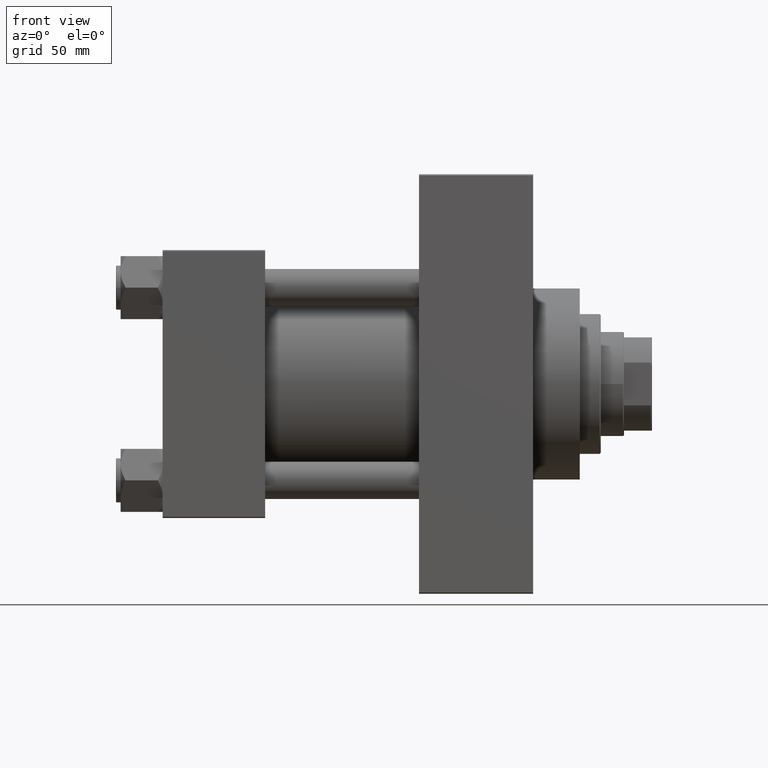
[diagram: clean part render]
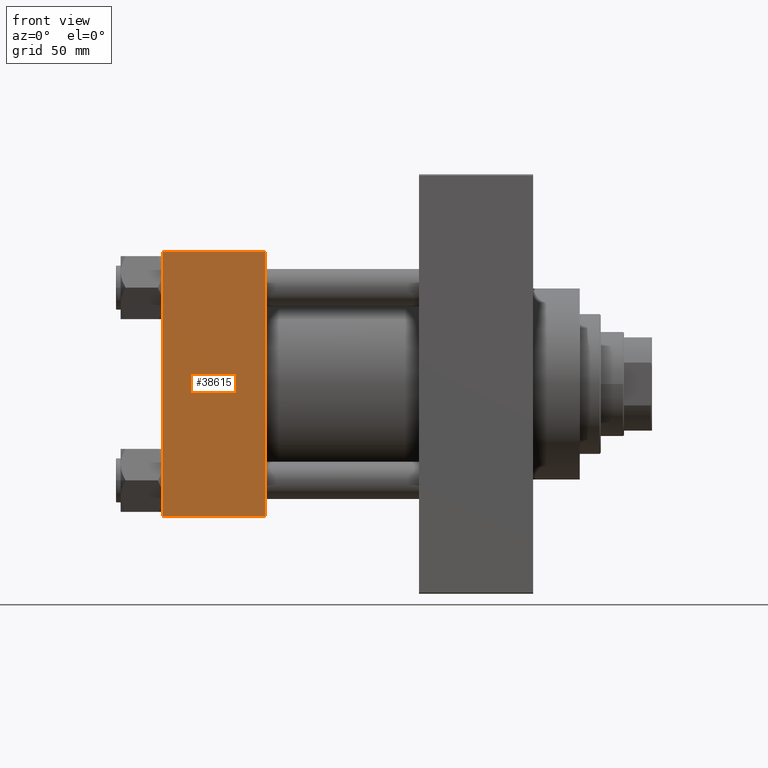
[diagram: same view with one face highlighted and labeled with its STEP entity id]
A machine part, front view. The second image highlights one B-rep face of the part: STEP entity #38615.
In plain terms, the highlighted planar face has unit normal (0, 1, 0).
Its self-contained STEP definition (entity closure, byte-faithful):
#2806 = CARTESIAN_POINT ( 'NONE',  ( 44.00000000000000000, -57.50000000000000711, 57.49999999999999289 ) ) ;
#3054 = DIRECTION ( 'NONE',  ( 0.000000000000000000, -0.000000000000000000, 1.000000000000000000 ) ) ;
#3288 = LINE ( 'NONE', #18469, #17769 ) ;
#6979 = CARTESIAN_POINT ( 'NONE',  ( 44.00000000000000000, -57.50000000000000711, 57.49999999999999289 ) ) ;
#7609 = DIRECTION ( 'NONE',  ( -0.000000000000000000, 1.000000000000000000, 0.000000000000000000 ) ) ;
#9660 = EDGE_CURVE ( 'NONE', #32970, #46285, #27195, .T. ) ;
#10749 = CARTESIAN_POINT ( 'NONE',  ( 44.00000000000000000, -57.50000000000000711, -57.00000000000000711 ) ) ;
#11232 = PLANE ( 'NONE',  #43580 ) ;
#14115 = DIRECTION ( 'NONE',  ( -1.000000000000000000, 0.000000000000000000, 0.000000000000000000 ) ) ;
#15908 = EDGE_CURVE ( 'NONE', #46285, #44646, #3288, .T. ) ;
#16343 = CARTESIAN_POINT ( 'NONE',  ( 0.000000000000000000, -57.50000000000000711, 57.49999999999999289 ) ) ;
#17190 = CARTESIAN_POINT ( 'NONE',  ( 44.00000000000000000, -57.50000000000000711, 57.00000000000000711 ) ) ;
#17769 = VECTOR ( 'NONE', #28826, 1000.000000000000000 ) ;
#18404 = VECTOR ( 'NONE', #19966, 1000.000000000000000 ) ;
#18469 = CARTESIAN_POINT ( 'NONE',  ( 44.00000000000000000, -57.50000000000000711, -57.00000000000000711 ) ) ;
#19966 = DIRECTION ( 'NONE',  ( 0.000000000000000000, 0.000000000000000000, -1.000000000000000000 ) ) ;
#20774 = EDGE_LOOP ( 'NONE', ( #39791, #21840, #29430, #29193 ) ) ;
#21580 = LINE ( 'NONE', #25672, #32042 ) ;
#21704 = DIRECTION ( 'NONE',  ( 0.000000000000000000, 0.000000000000000000, -1.000000000000000000 ) ) ;
#21840 = ORIENTED_EDGE ( 'NONE', *, *, #15908, .T. ) ;
#21859 = FACE_OUTER_BOUND ( 'NONE', #20774, .T. ) ;
#22189 = LINE ( 'NONE', #6979, #28990 ) ;
#23957 = CARTESIAN_POINT ( 'NONE',  ( 0.000000000000000000, -57.50000000000000711, 57.00000000000000711 ) ) ;
#25672 = CARTESIAN_POINT ( 'NONE',  ( 44.00000000000000000, -57.50000000000000711, 57.00000000000000711 ) ) ;
#27195 = LINE ( 'NONE', #16343, #18404 ) ;
#27714 = CARTESIAN_POINT ( 'NONE',  ( 0.000000000000000000, -57.50000000000000711, -57.00000000000000711 ) ) ;
#28826 = DIRECTION ( 'NONE',  ( 1.000000000000000000, 0.000000000000000000, 0.000000000000000000 ) ) ;
#28990 = VECTOR ( 'NONE', #21704, 1000.000000000000000 ) ;
#29193 = ORIENTED_EDGE ( 'NONE', *, *, #29752, .T. ) ;
#29430 = ORIENTED_EDGE ( 'NONE', *, *, #42759, .F. ) ;
#29752 = EDGE_CURVE ( 'NONE', #43717, #32970, #21580, .T. ) ;
#32042 = VECTOR ( 'NONE', #14115, 1000.000000000000000 ) ;
#32970 = VERTEX_POINT ( 'NONE', #23957 ) ;
#38615 = ADVANCED_FACE ( 'NONE', ( #21859 ), #11232, .F. ) ;
#39791 = ORIENTED_EDGE ( 'NONE', *, *, #9660, .T. ) ;
#42759 = EDGE_CURVE ( 'NONE', #43717, #44646, #22189, .T. ) ;
#43580 = AXIS2_PLACEMENT_3D ( 'NONE', #2806, #7609, #3054 ) ;
#43717 = VERTEX_POINT ( 'NONE', #17190 ) ;
#44646 = VERTEX_POINT ( 'NONE', #10749 ) ;
#46285 = VERTEX_POINT ( 'NONE', #27714 ) ;